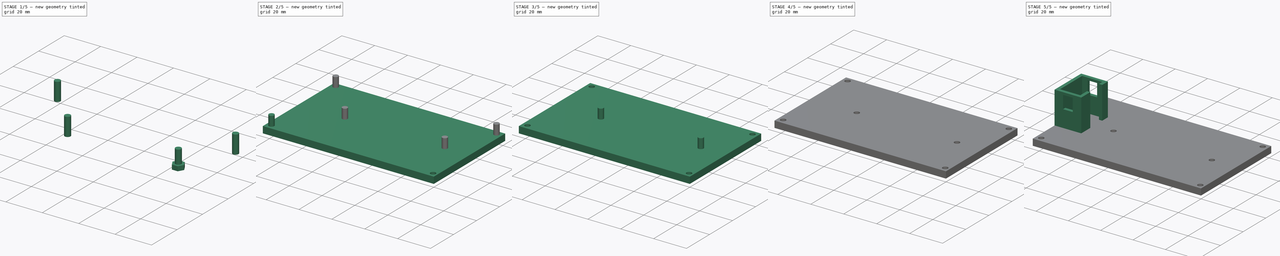
[diagram: build sequence overview — one tinted view per stage of 5, left to right]
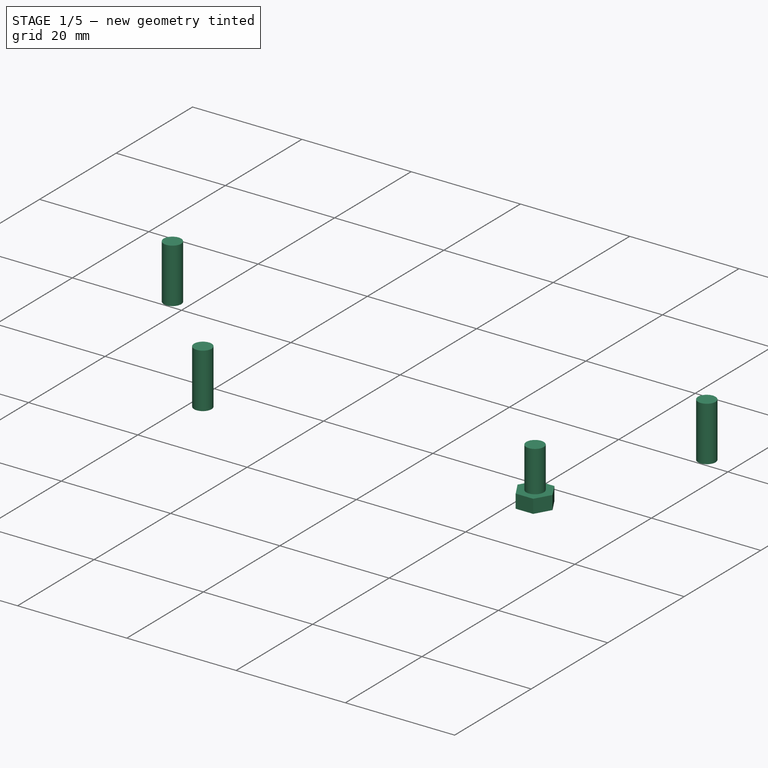
[diagram: stage 1 of 5 — iso view after this stage's code; geometry added in this stage tinted green]
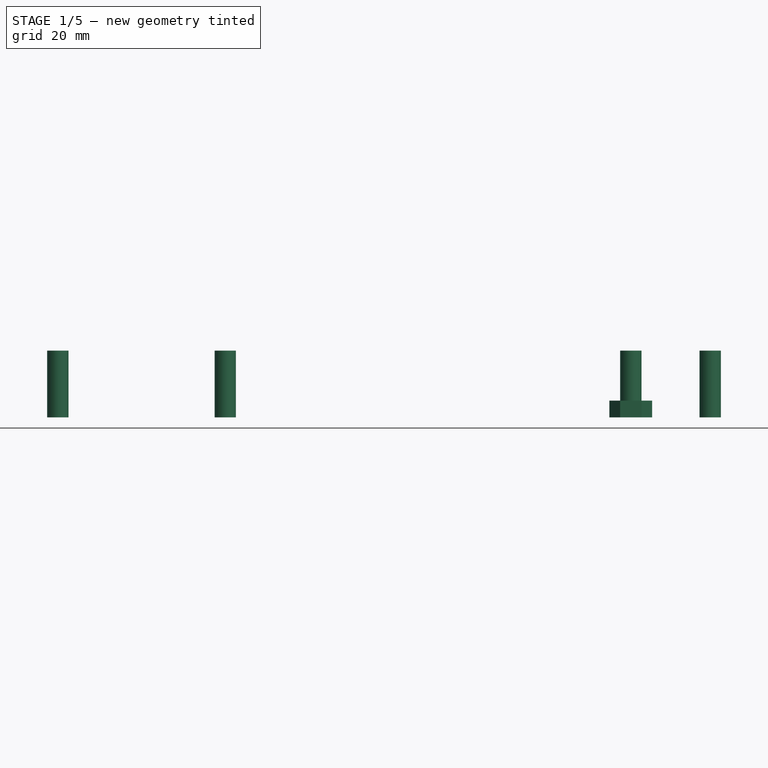
[diagram: stage 1 of 5 — front view after this stage's code; geometry added in this stage tinted green]
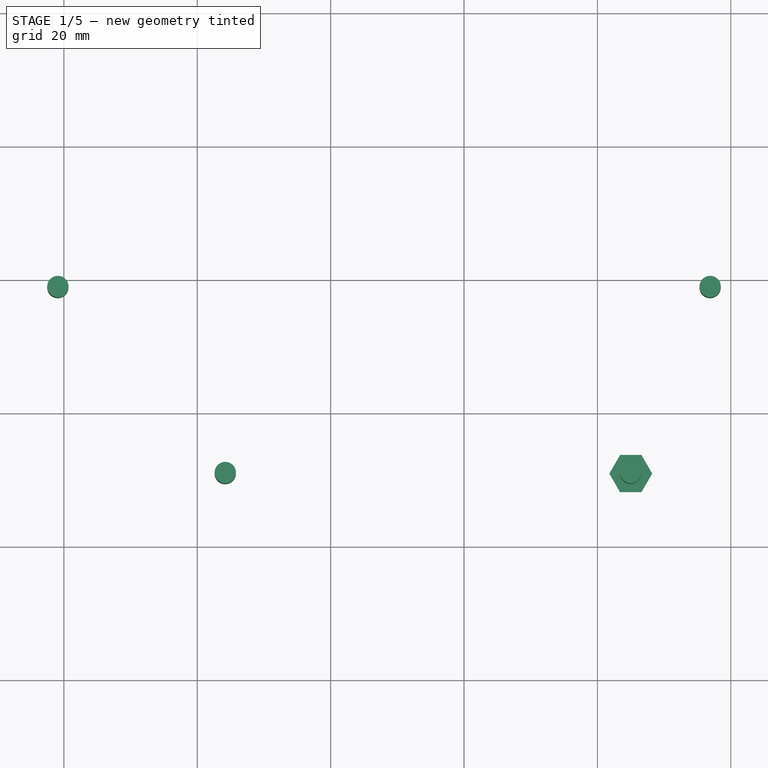
[diagram: stage 1 of 5 — top view after this stage's code; geometry added in this stage tinted green]
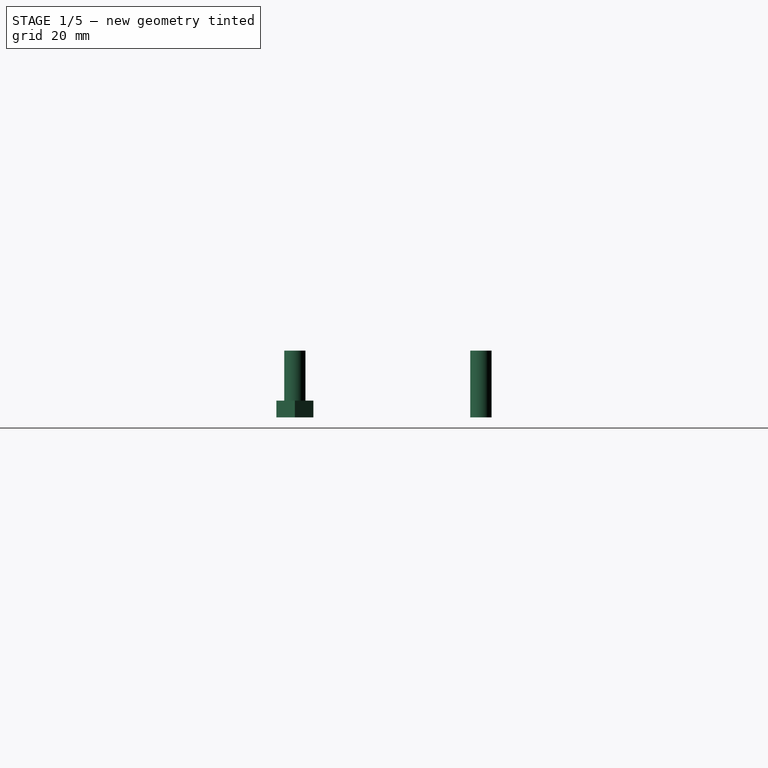
[diagram: stage 1 of 5 — right view after this stage's code; geometry added in this stage tinted green]
FCSTD DOCUMENT  (FreeCAD 1.0R39109 (Git))
Label: Battery Platform
License: All rights reserved
LicenseURL: https://en.wikipedia.org/wiki/All_rights_reserved
objects: Part::Cut×8, Part::Cylinder×4, Sketcher::SketchObject×4, Part::Extrusion×4, Part::Box×2, Part::MultiFuse×1
note: 27 computed .brp shape members not serialized (recipe doc carries the construction recipe); baked Part::Feature solids carry a one-line shape summary decoded from their .brp

FEATURE [Part::Cylinder] Cylinder006  label="Mount Point002"
  Angle = 360
  AttacherType = Attacher::AttachEngine3D
  FirstAngle = 0
  Height = 10
  Placement = pos=(-100.9,58.9,0) rot=(0,0,1;0rad)
  Radius = 1.6
  SecondAngle = 0
FEATURE [Part::Cylinder] Cylinder007  label="Mount Point003"
  Angle = 360
  AttacherType = Attacher::AttachEngine3D
  FirstAngle = 0
  Height = 10
  Placement = pos=(-3.1,58.9,0) rot=(0,0,1;0rad)
  Radius = 1.6
  SecondAngle = 0
FEATURE [Sketcher::SketchObject] Sketch
  ArcFitTolerance = 1e-06
  FullyConstrained = true
  MakeInternals = false
  sketch-geometry (2):
    g0: Circle CenterX=-15 CenterY=31 CenterZ=0 NormalX=0 NormalY=0 NormalZ=1 AngleXU=0 Radius=1.6
    g1: Circle CenterX=-75.8 CenterY=31 CenterZ=0 NormalX=0 NormalY=0 NormalZ=1 AngleXU=0 Radius=1.6
  constraints (6):
    c: Diameter(g0) = 3.2
    c: Diameter(g1) = 3.2
    c: Horizontal(g0,g1)
    c: DistanceY(g0,g-1) = -31
    c: DistanceX(g0,g-1) = 15
    c: DistanceX(g1,g0) = 60.8
FEATURE [Part::Extrusion] Extrude
  Base = -> Sketch
  Dir = (0,0,1)
  DirMode = 2
  FaceMakerClass = Part::FaceMakerBullseye
  FaceMakerMode = 3
  LengthFwd = 10
  LengthRev = 0
  Solid = true
  Symmetric = false
FEATURE [Sketcher::SketchObject] Sketch002
  ArcFitTolerance = 1e-06
  FullyConstrained = true
  MakeInternals = false
  sketch-geometry (8):
    g0: Circle CenterX=0 CenterY=0 CenterZ=0 NormalX=0 NormalY=0 NormalZ=1 AngleXU=0 Radius=1.6
    g1: LineSegment StartX=3.2 StartY=0 StartZ=0 EndX=1.6 EndY=2.77128 EndZ=0
    g2: LineSegment StartX=1.6 StartY=2.77128 StartZ=0 EndX=-1.6 EndY=2.77128 EndZ=0
    g3: LineSegment StartX=-1.6 StartY=2.77128 StartZ=0 EndX=-3.2 EndY=-2.64055e-11 EndZ=0
    g4: LineSegment StartX=-3.2 StartY=-2.64055e-11 StartZ=0 EndX=-1.6 EndY=-2.77128 EndZ=0
    g5: LineSegment StartX=-1.6 StartY=-2.77128 StartZ=0 EndX=1.6 EndY=-2.77128 EndZ=0
    g6: LineSegment StartX=1.6 StartY=-2.77128 StartZ=0 EndX=3.2 EndY=0 EndZ=0
    g7: Circle [constr] CenterX=0 CenterY=0 CenterZ=0 NormalX=0 NormalY=0 NormalZ=1 AngleXU=0 Radius=3.2
  constraints (18):
    c: Diameter(g0) = 3.2
    c: Coincident(g0,g-1)
    c: Coincident(g1,g2)
    c: Coincident(g2,g3)
    c: Coincident(g3,g4)
    c: Coincident(g4,g5)
    c: Coincident(g5,g6)
    c: Coincident(g6,g1)
    c: Equal(g1, g2-g6) x5
    c: PointOnObject(g1,g7)
    c: PointOnObject(g2,g7)
    c: PointOnObject(g3,g7)
    c: PointOnObject(g4,g7)
    c: PointOnObject(g5,g7)
    c: PointOnObject(g6,g7)
    c: Radius(g7) = 3.2
    c: Coincident(g7,g0)
    c: PointOnObject(g6,g-1)
FEATURE [Part::Extrusion] Extrude002  label="Nylon Nut Cutout"
  Base = -> Sketch002
  Dir = (0,0,1)
  DirMode = 2
  FaceMakerClass = Part::FaceMakerBullseye
  FaceMakerMode = 3
  LengthFwd = 2.5
  LengthRev = 0
  Placement = pos=(-15,31,0) rot=(0,0,1;0rad)
  Solid = true
  Symmetric = false
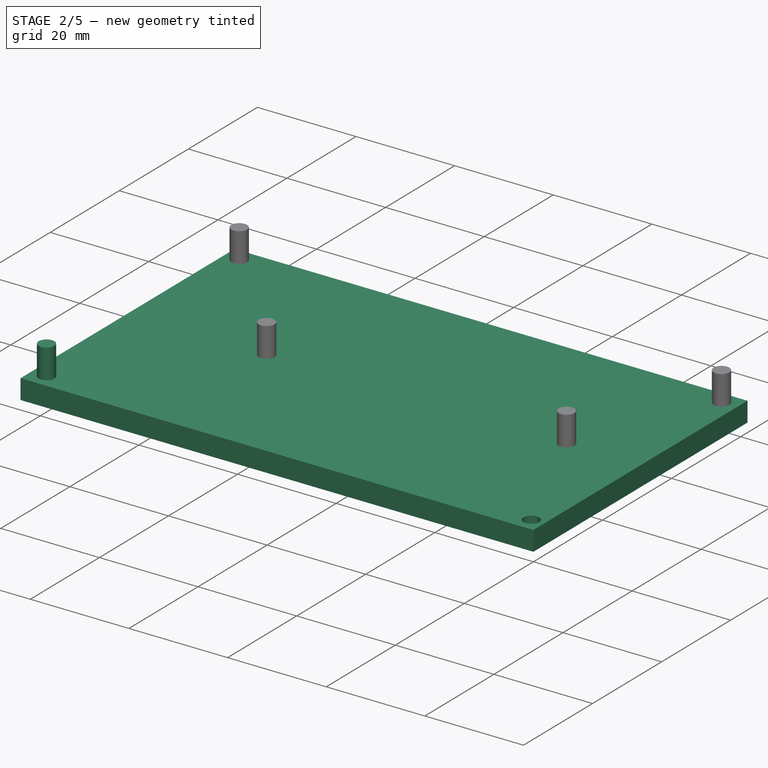
[diagram: stage 2 of 5 — iso view after this stage's code; geometry added in this stage tinted green]
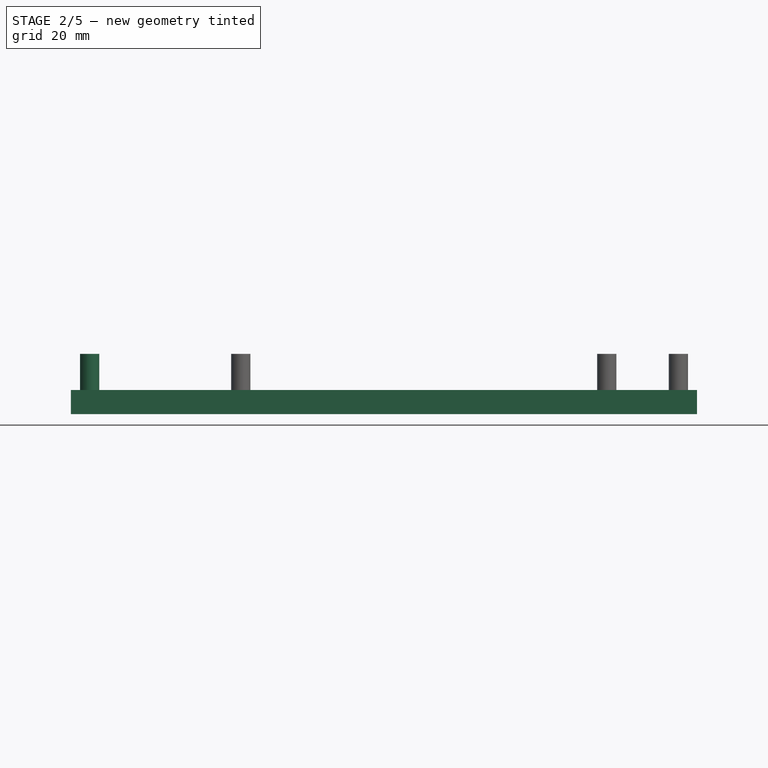
[diagram: stage 2 of 5 — front view after this stage's code; geometry added in this stage tinted green]
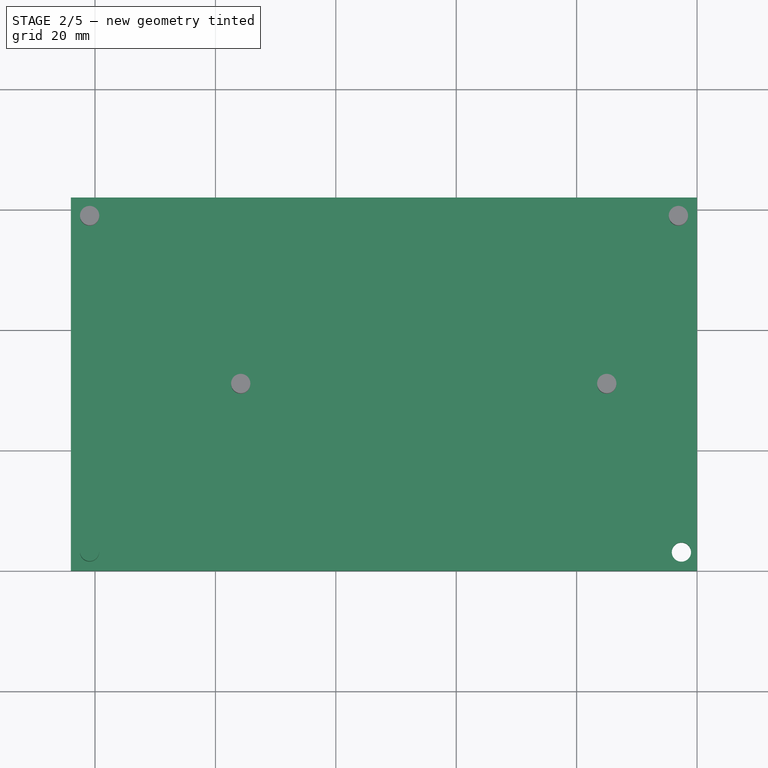
[diagram: stage 2 of 5 — top view after this stage's code; geometry added in this stage tinted green]
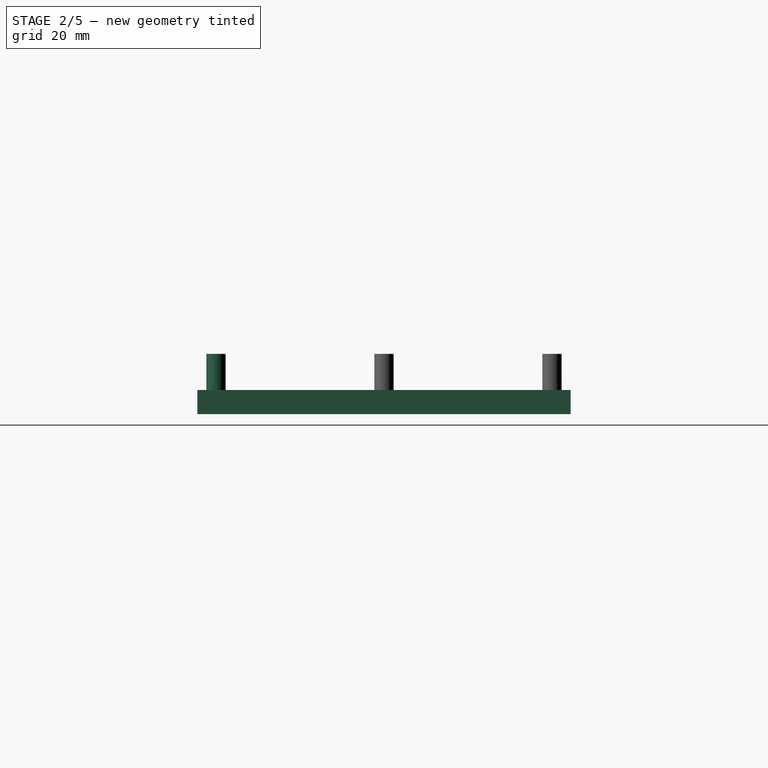
[diagram: stage 2 of 5 — right view after this stage's code; geometry added in this stage tinted green]
FEATURE [Part::Box] Box001  label="Cube001"
  AttacherType = Attacher::AttachEngine3D
  Height = 4
  Length = 104
  Placement = pos=(-104,0,0) rot=(0,0,1;0rad)
  Width = 62
FEATURE [Part::Cylinder] Cylinder004  label="Mount Point"
  Angle = 360
  AttacherType = Attacher::AttachEngine3D
  FirstAngle = 0
  Height = 10
  Placement = pos=(-2.6,3.1,0) rot=(0,0,1;0rad)
  Radius = 1.6
  SecondAngle = 0
FEATURE [Part::Cut] Cut005
  Base = -> Box001
  Tool = -> Cylinder004
FEATURE [Part::Cylinder] Cylinder005  label="Mount Point001"
  Angle = 360
  AttacherType = Attacher::AttachEngine3D
  FirstAngle = 0
  Height = 10
  Placement = pos=(-100.9,3.1,0) rot=(0,0,1;0rad)
  Radius = 1.6
  SecondAngle = 0
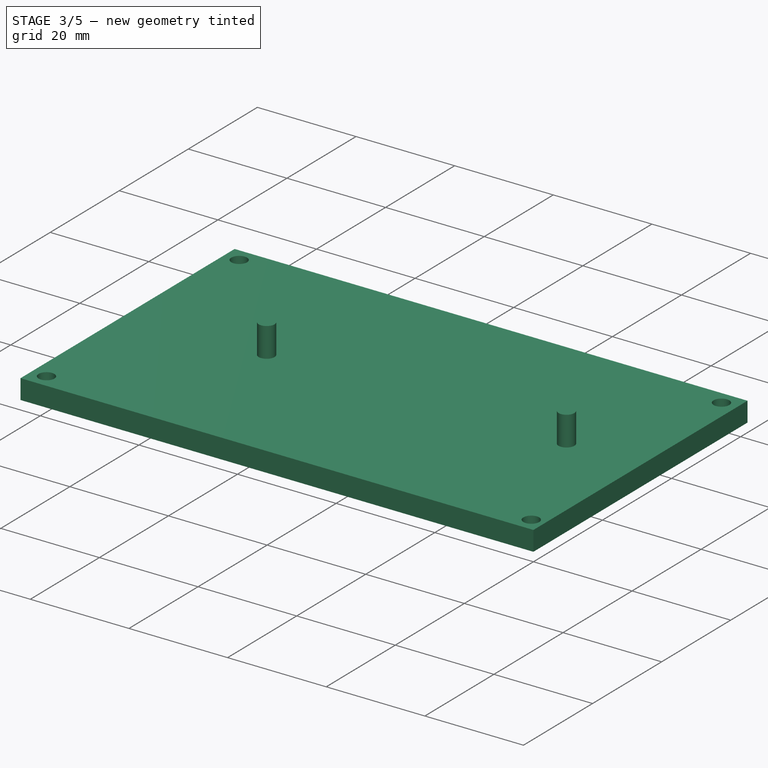
[diagram: stage 3 of 5 — iso view after this stage's code; geometry added in this stage tinted green]
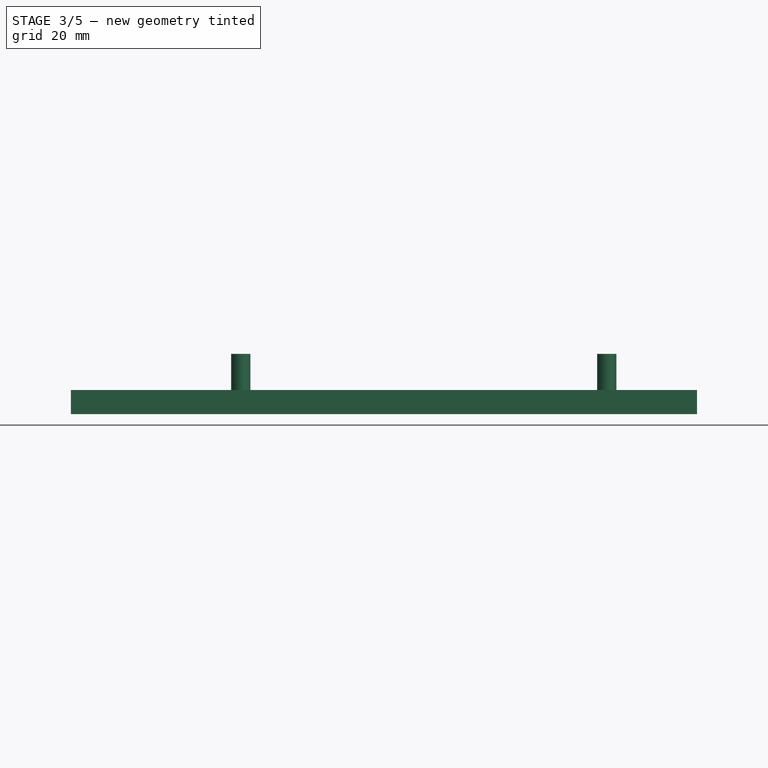
[diagram: stage 3 of 5 — front view after this stage's code; geometry added in this stage tinted green]
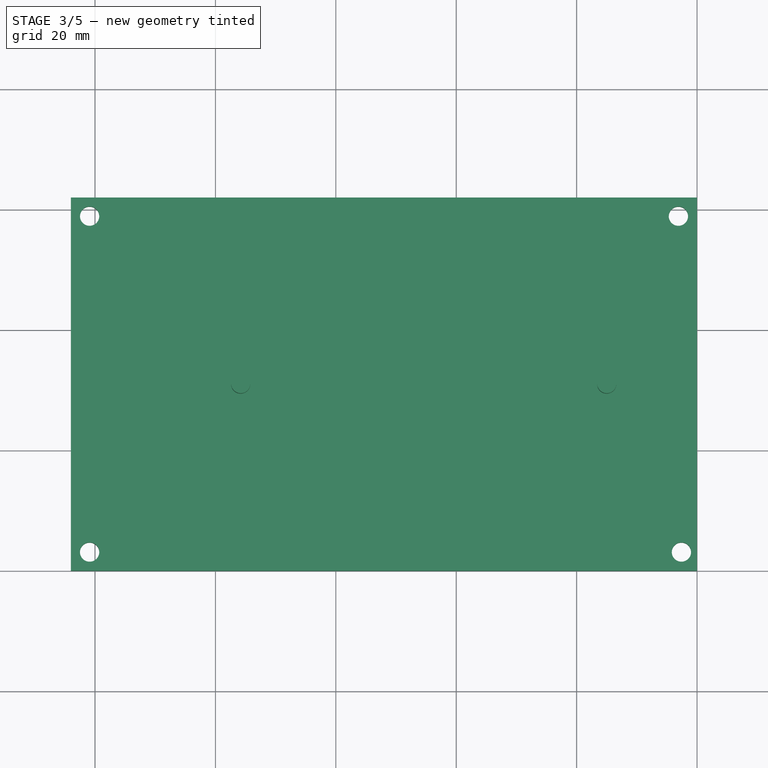
[diagram: stage 3 of 5 — top view after this stage's code; geometry added in this stage tinted green]
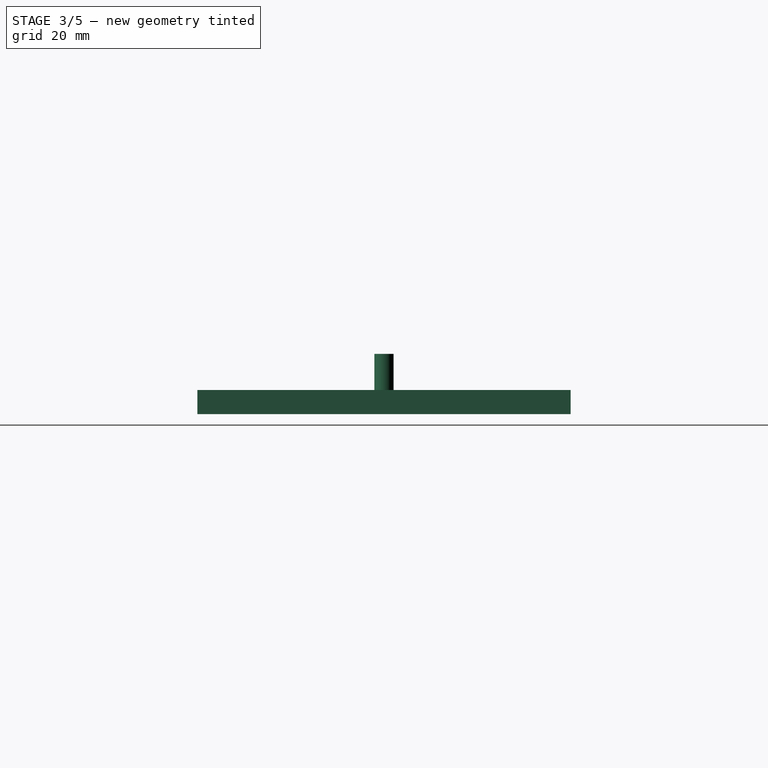
[diagram: stage 3 of 5 — right view after this stage's code; geometry added in this stage tinted green]
FEATURE [Part::Cut] Cut006
  Base = -> Cut005
  Tool = -> Cylinder005
FEATURE [Part::Cut] Cut007
  Base = -> Cut006
  Tool = -> Cylinder006
FEATURE [Part::Cut] Cut008  label="Standard Platform"
  Base = -> Cut007
  Tool = -> Cylinder007
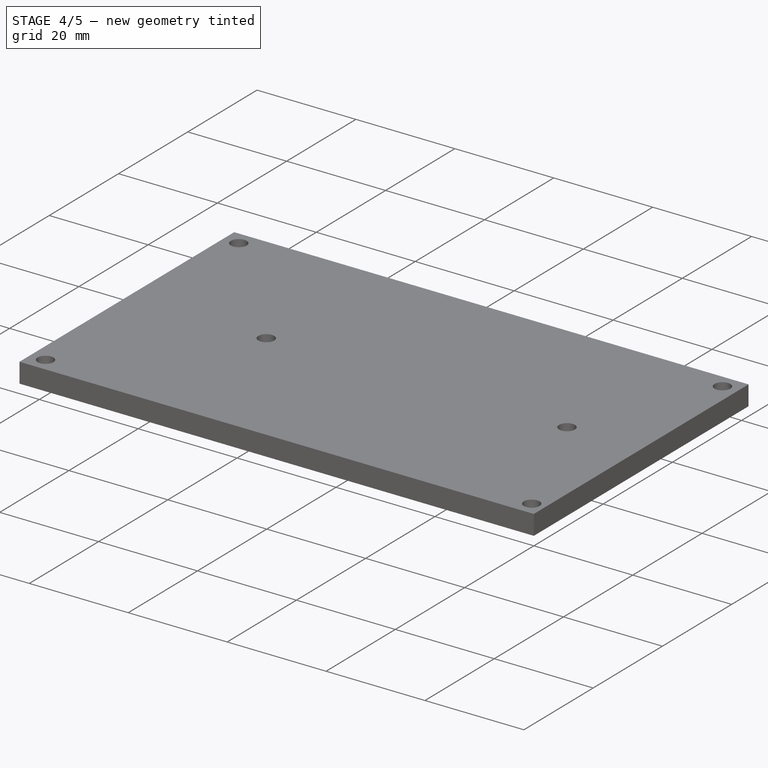
[diagram: stage 4 of 5 — iso view after this stage's code; geometry added in this stage tinted green]
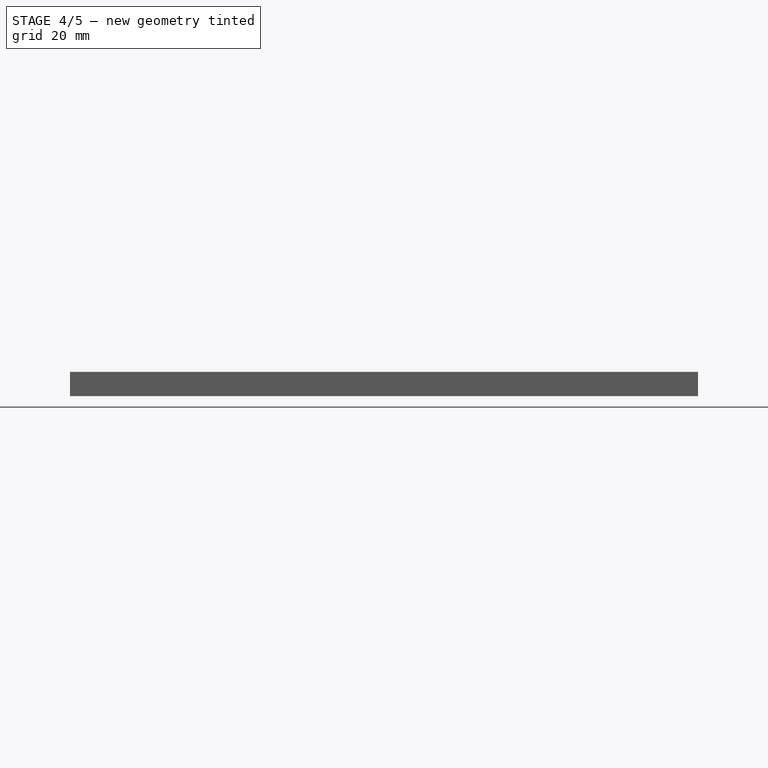
[diagram: stage 4 of 5 — front view after this stage's code; geometry added in this stage tinted green]
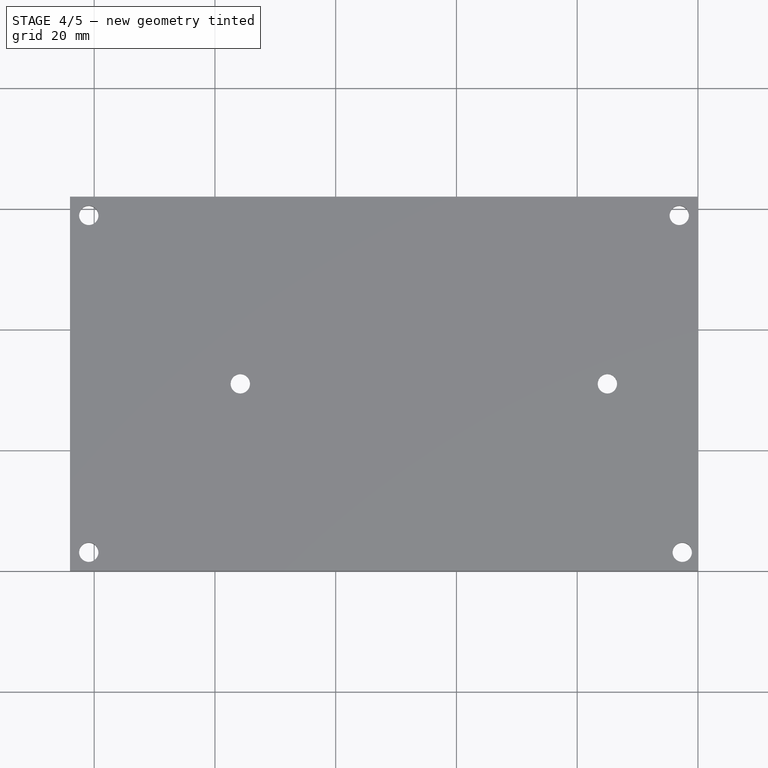
[diagram: stage 4 of 5 — top view after this stage's code; geometry added in this stage tinted green]
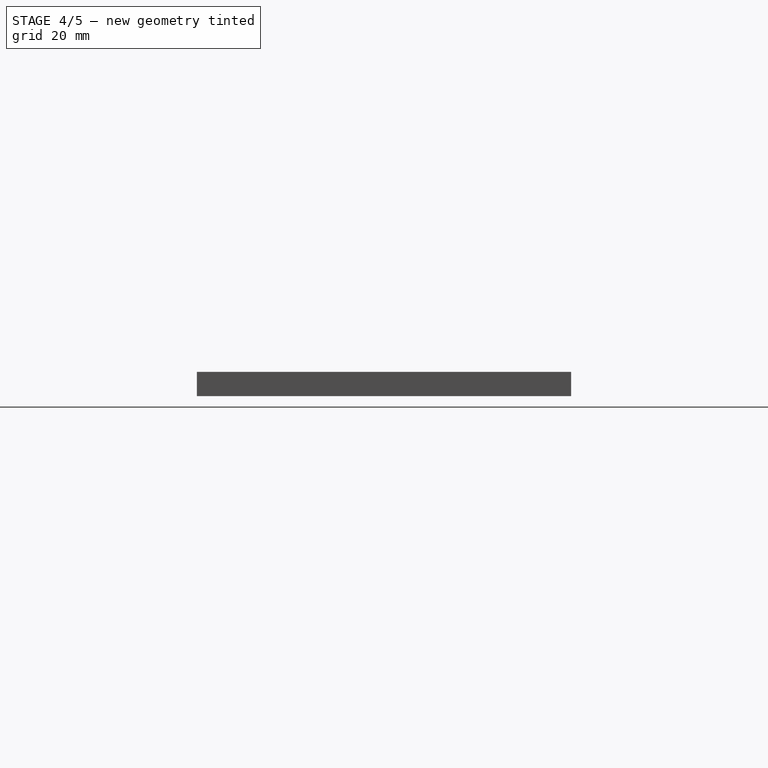
[diagram: stage 4 of 5 — right view after this stage's code; geometry added in this stage tinted green]
FEATURE [Part::Cut] Cut
  Base = -> Cut008
  Tool = -> Extrude
FEATURE [Sketcher::SketchObject] Sketch003
  ArcFitTolerance = 1e-06
  FullyConstrained = true
  MakeInternals = false
  sketch-geometry (8):
    g0: Circle CenterX=0 CenterY=0 CenterZ=0 NormalX=0 NormalY=0 NormalZ=1 AngleXU=0 Radius=1.6
    g1: LineSegment StartX=3.2 StartY=0 StartZ=0 EndX=1.6 EndY=2.77128 EndZ=0
    g2: LineSegment StartX=1.6 StartY=2.77128 StartZ=0 EndX=-1.6 EndY=2.77128 EndZ=0
    g3: LineSegment StartX=-1.6 StartY=2.77128 StartZ=0 EndX=-3.2 EndY=-2.64055e-11 EndZ=0
    g4: LineSegment StartX=-3.2 StartY=-2.64055e-11 StartZ=0 EndX=-1.6 EndY=-2.77128 EndZ=0
    g5: LineSegment StartX=-1.6 StartY=-2.77128 StartZ=0 EndX=1.6 EndY=-2.77128 EndZ=0
    g6: LineSegment StartX=1.6 StartY=-2.77128 StartZ=0 EndX=3.2 EndY=0 EndZ=0
    g7: Circle [constr] CenterX=0 CenterY=0 CenterZ=0 NormalX=0 NormalY=0 NormalZ=1 AngleXU=0 Radius=3.2
  constraints (18):
    c: Diameter(g0) = 3.2
    c: Coincident(g0,g-1)
    c: Coincident(g1,g2)
    c: Coincident(g2,g3)
    c: Coincident(g3,g4)
    c: Coincident(g4,g5)
    c: Coincident(g5,g6)
    c: Coincident(g6,g1)
    c: Equal(g1, g2-g6) x5
    c: PointOnObject(g1,g7)
    c: PointOnObject(g2,g7)
    c: PointOnObject(g3,g7)
    c: PointOnObject(g4,g7)
    c: PointOnObject(g5,g7)
    c: PointOnObject(g6,g7)
    c: Radius(g7) = 3.2
    c: Coincident(g7,g0)
    c: PointOnObject(g6,g-1)
FEATURE [Part::Extrusion] Extrude003  label="Nylon Nut Cutout001"
  Base = -> Sketch003
  Dir = (0,0,1)
  DirMode = 2
  FaceMakerClass = Part::FaceMakerBullseye
  FaceMakerMode = 3
  LengthFwd = 2.5
  LengthRev = 0
  Placement = pos=(-75.8,31,0) rot=(0,0,1;0rad)
  Solid = true
  Symmetric = false
FEATURE [Part::Cut] Cut010
  Base = -> Cut
  Tool = -> Extrude002
FEATURE [Part::Cut] Cut011  label="Platform with battery holes + nuts"
  Base = -> Cut010
  Tool = -> Extrude003
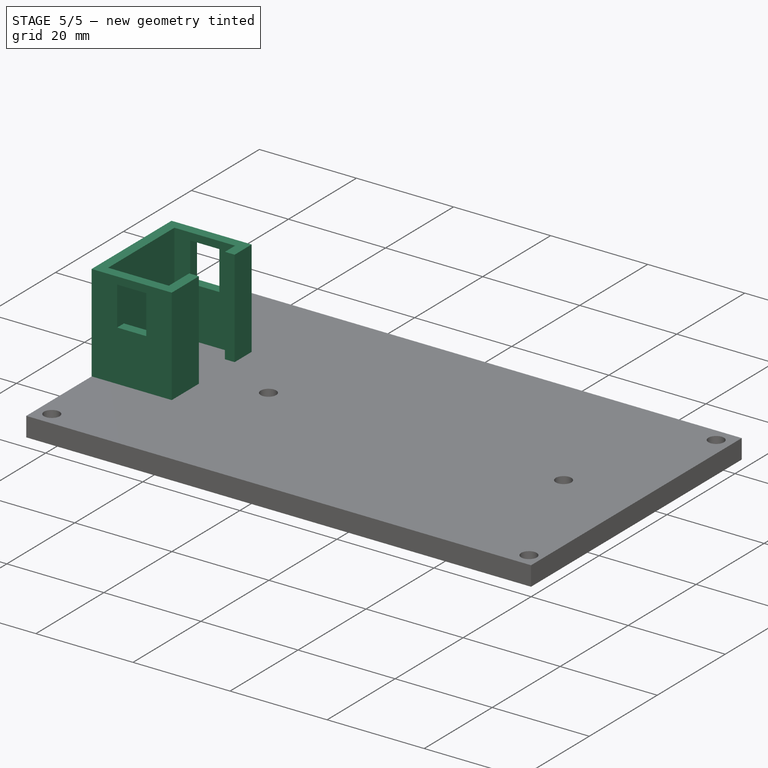
[diagram: stage 5 of 5 — iso view after this stage's code; geometry added in this stage tinted green]
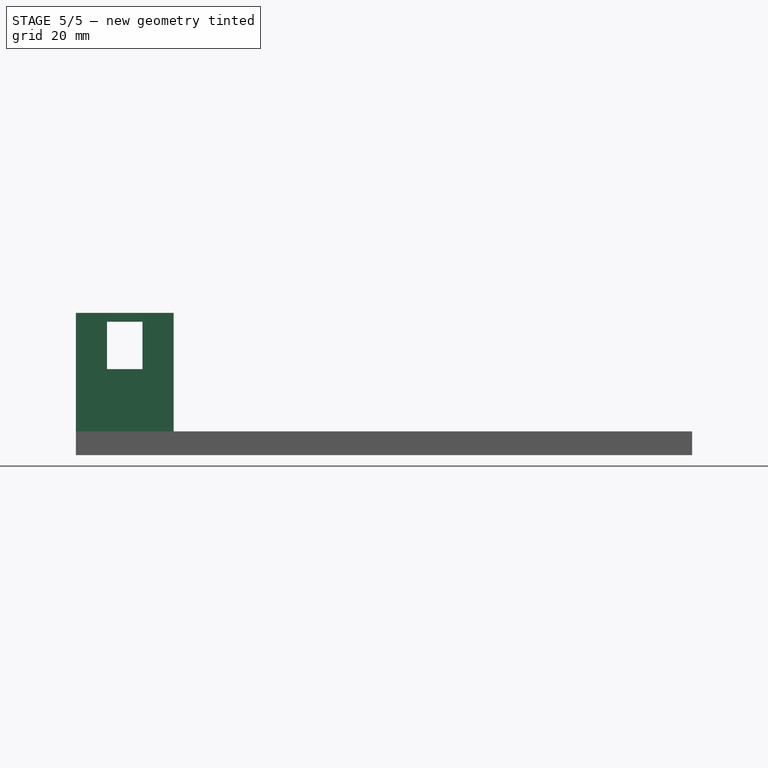
[diagram: stage 5 of 5 — front view after this stage's code; geometry added in this stage tinted green]
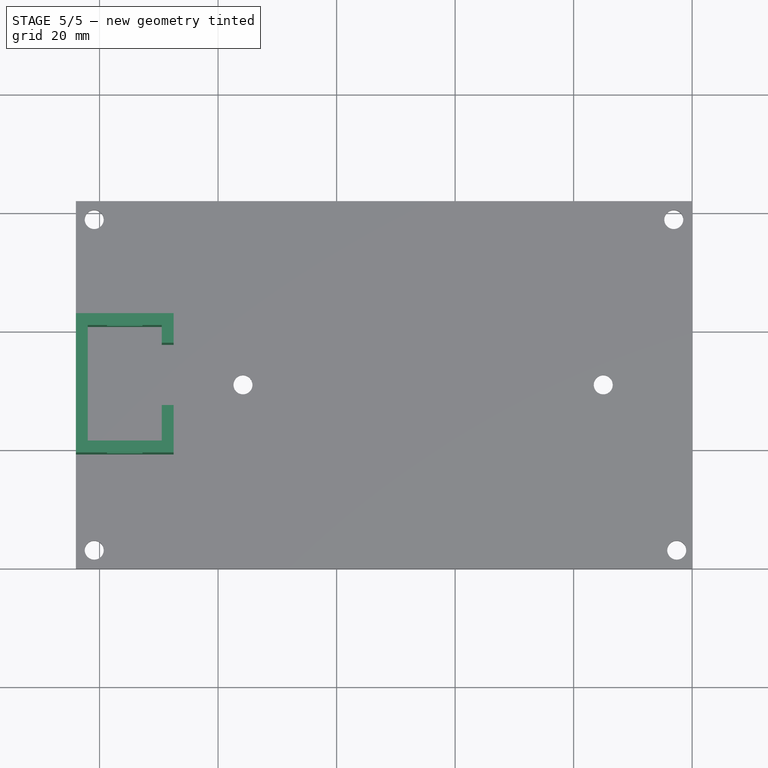
[diagram: stage 5 of 5 — top view after this stage's code; geometry added in this stage tinted green]
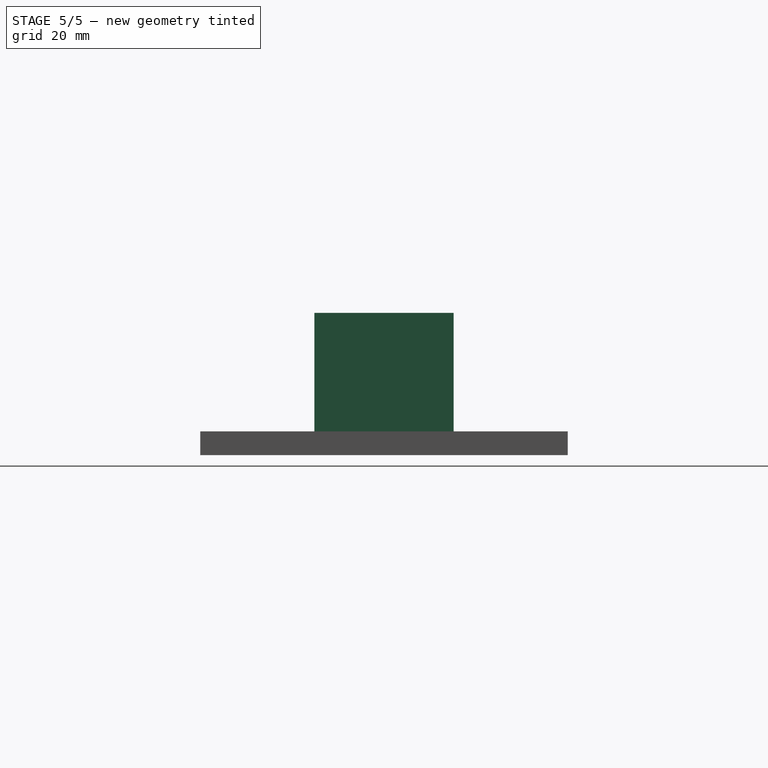
[diagram: stage 5 of 5 — right view after this stage's code; geometry added in this stage tinted green]
FEATURE [Sketcher::SketchObject] Sketch001
  ArcFitTolerance = 1e-06
  FullyConstrained = true
  MakeInternals = false
  sketch-geometry (12):
    g0: LineSegment StartX=6.25 StartY=-9.75 StartZ=0 EndX=6.25 EndY=9.75 EndZ=0
    g1: LineSegment StartX=6.25 StartY=9.75 StartZ=0 EndX=-6.25 EndY=9.75 EndZ=0
    g2: LineSegment StartX=-6.25 StartY=9.75 StartZ=0 EndX=-6.25 EndY=3.75 EndZ=0
    g3: LineSegment StartX=-6.25 StartY=3.75 StartZ=0 EndX=-8.25 EndY=3.75 EndZ=0
    g4: LineSegment StartX=-8.25 StartY=3.75 StartZ=0 EndX=-8.25 EndY=11.75 EndZ=0
    g5: LineSegment StartX=-8.25 StartY=11.75 StartZ=0 EndX=8.25 EndY=11.75 EndZ=0
    g6: LineSegment StartX=8.25 StartY=11.75 StartZ=0 EndX=8.25 EndY=-11.75 EndZ=0
    g7: LineSegment StartX=8.25 StartY=-11.75 StartZ=0 EndX=-8.25 EndY=-11.75 EndZ=0
    g8: LineSegment StartX=-8.25 StartY=-11.75 StartZ=0 EndX=-8.25 EndY=-6.75 EndZ=0
    g9: LineSegment StartX=-8.25 StartY=-6.75 StartZ=0 EndX=-6.25 EndY=-6.75 EndZ=0
    g10: LineSegment StartX=-6.25 StartY=-6.75 StartZ=0 EndX=-6.25 EndY=-9.75 EndZ=0
    g11: LineSegment StartX=-6.25 StartY=-9.75 StartZ=0 EndX=6.25 EndY=-9.75 EndZ=0
  constraints (33):
    c: Coincident(g1,g0)
    c: Coincident(g2,g1)
    c: Vertical(g2)
    c: Coincident(g4,g3)
    c: Vertical(g4)
    c: Horizontal(g5)
    c: Coincident(g7,g6)
    c: Horizontal(g7)
    c: Coincident(g8,g7)
    c: Vertical(g8)
    c: Coincident(g2,g3)
    c: Horizontal(g3)
    c: Coincident(g5,g6)
    c: Coincident(g5,g4)
    c: Symmetric(g0,g0,g-1)
    c: Symmetric(g5,g6,g-1)
    c: Vertical(g8,g3)
    c: DistanceX(g0,g6) = 2
    c: Symmetric(g1,g0,g-2)
    c: Distance(g2,g2) = 6
    c: DistanceY(g0,g0) = 19.5
    c: DistanceX(g1,g1) = 12.5
    c: Coincident(g9,g8)
    c: Horizontal(g9)
    c: Coincident(g10,g9)
    c: Vertical(g10)
    c: Coincident(g11,g10)
    c: Coincident(g11,g0)
    c: Horizontal(g11)
    c: Equal(g9,g3)
    c: DistanceX(g9,g9) = 2
    c: Distance(g11,g7) = 2
    c: DistanceY(g10,g10) = 3
FEATURE [Part::Extrusion] Extrude001
  Base = -> Sketch001
  Dir = (0,0,1)
  DirMode = 2
  FaceMakerClass = Part::FaceMakerBullseye
  FaceMakerMode = 3
  LengthFwd = 20
  LengthRev = 0
  Solid = true
  Symmetric = false
FEATURE [Part::Box] Box  label="Cube"
  AttacherType = Attacher::AttachEngine3D
  Height = 8
  Length = 6
  Placement = pos=(-3,-15,10.5) rot=(0,0,1;0rad)
  Width = 30
FEATURE [Part::Cut] Cut009  label="Switch Holder"
  Base = -> Extrude001
  Placement = pos=(-95.75,31,4) rot=(0,0,1;3.14159rad)
  Tool = -> Box
FEATURE [Part::MultiFuse] Fusion  label="Battery Platform"
  Shapes = -> [Cut011,Cut009]
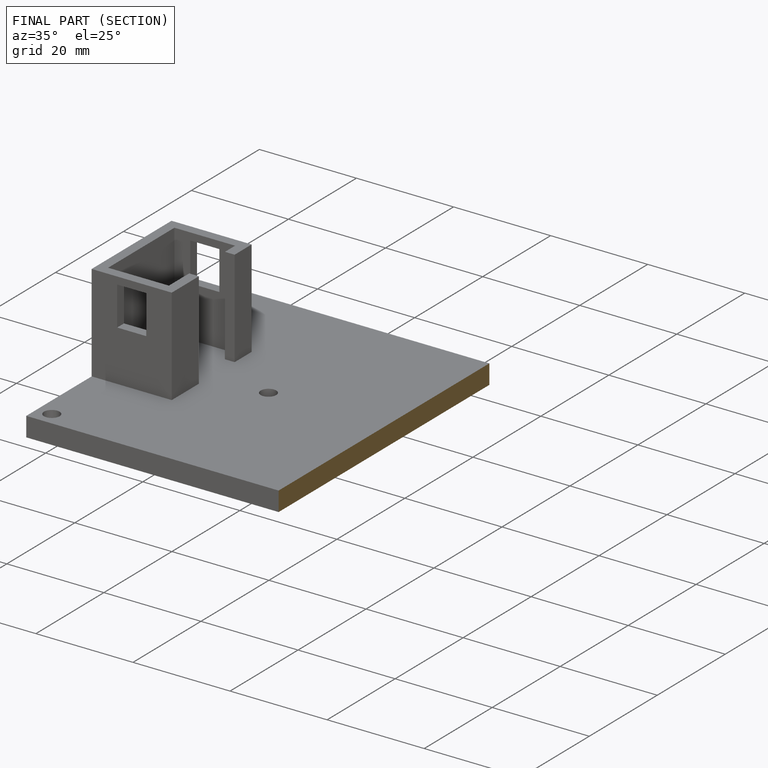
[diagram: finished part — half-section view (interior)]
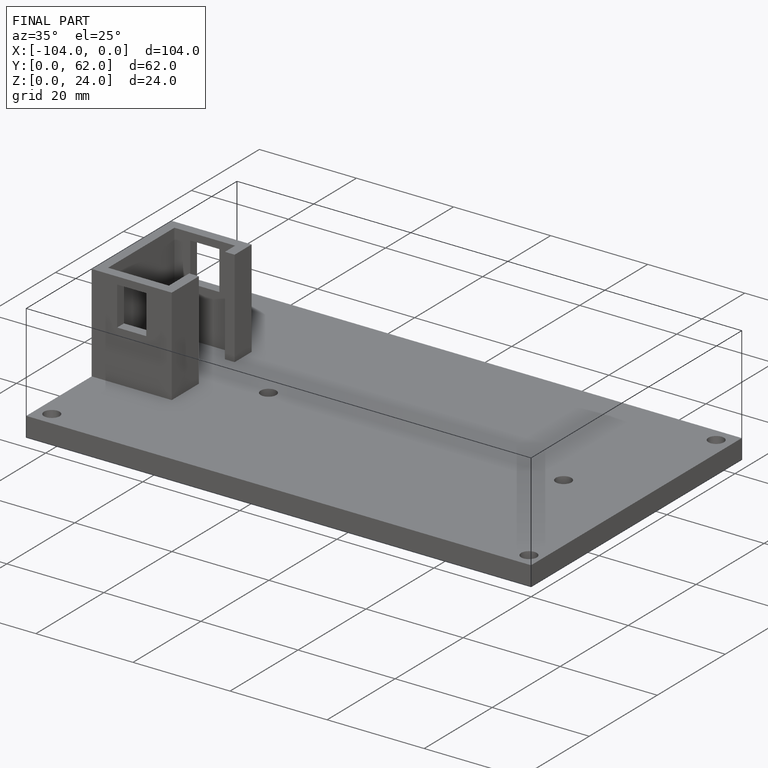
[diagram: finished part — iso view with bounding-box wireframe]
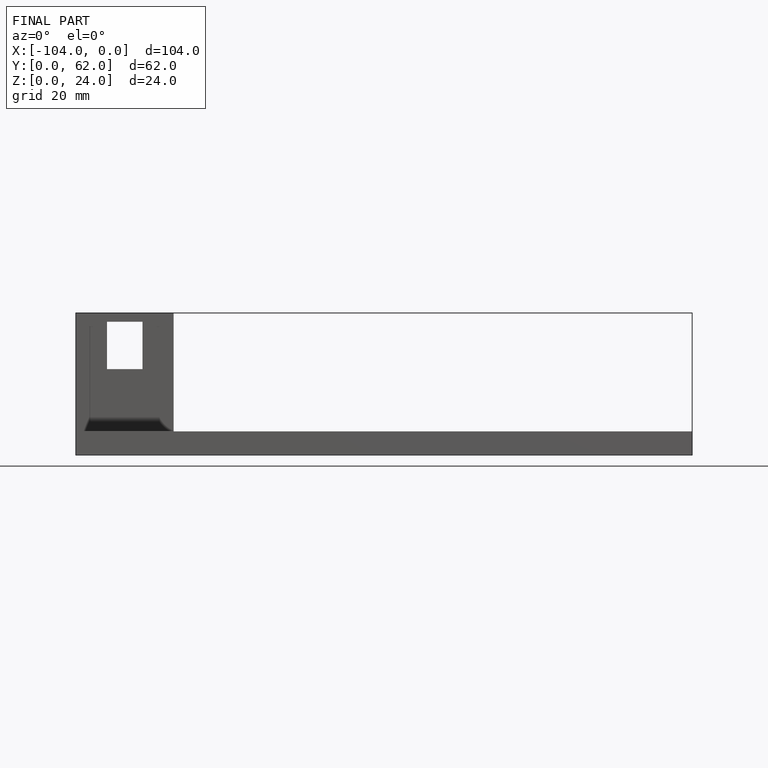
[diagram: finished part — front view with bounding-box wireframe]
